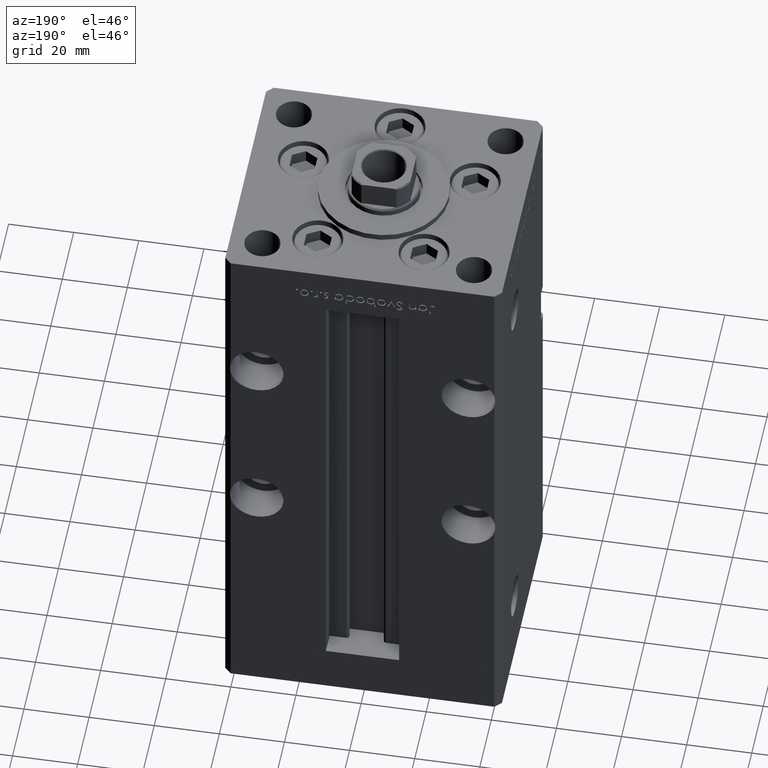
[diagram: clean part render]
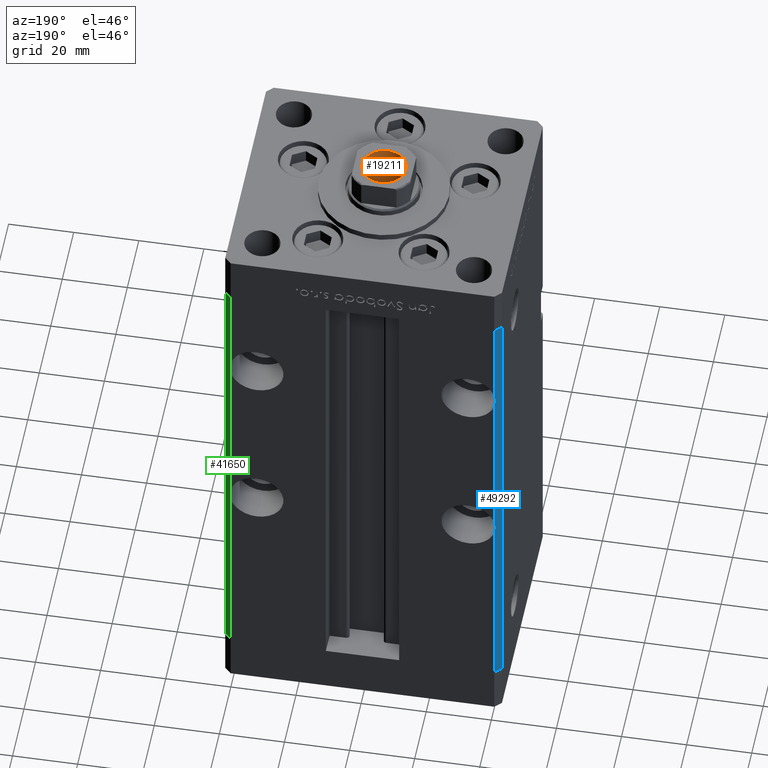
[diagram: same view with three faces highlighted in distinct colors, each labeled with its STEP entity id]
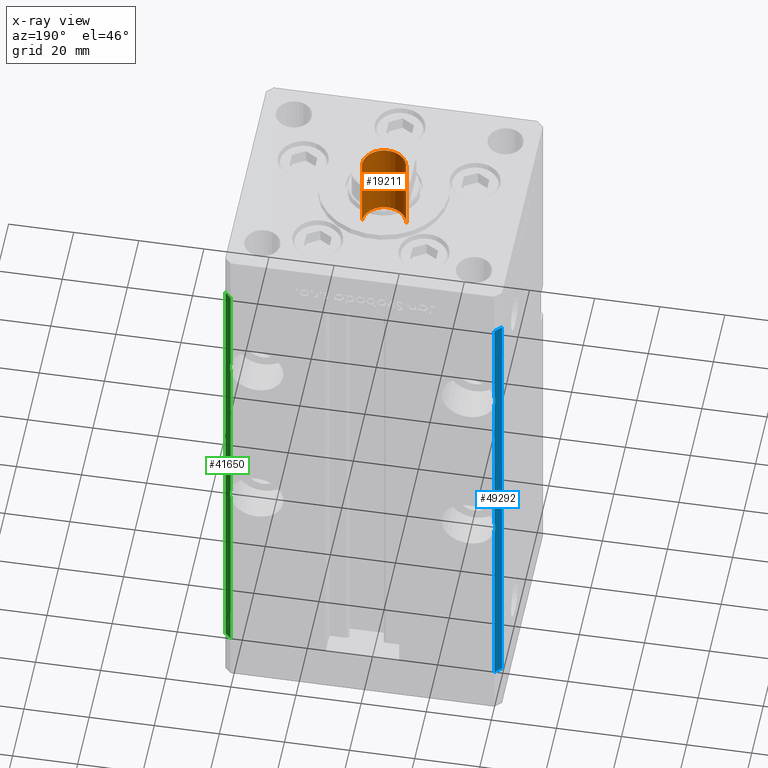
[diagram: x-ray of the same camera — body ghosted, the three highlighted faces saturated]
A machine part, auxiliary view with three faces highlighted in distinct colors.
The next image is the same camera in x-ray (body ghosted, the three faces saturated) — at least one of them is partly hidden behind the body in this view.
Their STEP definitions:

[orange] entity #19211 — the highlighted cylindrical surface (edge-blend (fillet) strip) has radius 6.75 mm, axis along (0, 0, 1).
#5401 = DIRECTION ( 'NONE',  ( -0.000000000000000000, -0.000000000000000000, 1.000000000000000000 ) ) ;
#7543 = EDGE_CURVE ( 'NONE', #15644, #9342, #8382, .T. ) ;
#7642 = DIRECTION ( 'NONE',  ( -0.000000000000000000, -0.000000000000000000, 1.000000000000000000 ) ) ;
#8382 = CIRCLE ( 'NONE', #48716, 6.749999999999993783 ) ;
#9174 = CARTESIAN_POINT ( 'NONE',  ( 6.749999999999995559, 0.000000000000000000, 155.7500000000000000 ) ) ;
#9342 = VERTEX_POINT ( 'NONE', #51227 ) ;
#10699 = EDGE_CURVE ( 'NONE', #15644, #46505, #35316, .T. ) ;
#10892 = CARTESIAN_POINT ( 'NONE',  ( -6.749999999999993783, 8.266365894244626445E-16, 130.7500000000000000 ) ) ;
#10893 = ORIENTED_EDGE ( 'NONE', *, *, #23974, .T. ) ;
#12662 = VERTEX_POINT ( 'NONE', #16691 ) ;
#12695 = LINE ( 'NONE', #9174, #34464 ) ;
#13616 = VECTOR ( 'NONE', #42592, 1000.000000000000000 ) ;
#14595 = CARTESIAN_POINT ( 'NONE',  ( 0.000000000000000000, 0.000000000000000000, 130.7500000000000000 ) ) ;
#14755 = CIRCLE ( 'NONE', #44793, 6.749999999999995559 ) ;
#15206 = CARTESIAN_POINT ( 'NONE',  ( 0.000000000000000000, 0.000000000000000000, 155.7500000000000000 ) ) ;
#15644 = VERTEX_POINT ( 'NONE', #10892 ) ;
#16691 = CARTESIAN_POINT ( 'NONE',  ( 6.749999999999995559, 0.000000000000000000, 155.4499999999999886 ) ) ;
#19211 = ADVANCED_FACE ( 'NONE', ( #35639 ), #52008, .F. ) ;
#19503 = DIRECTION ( 'NONE',  ( 1.000000000000000000, 0.000000000000000000, 0.000000000000000000 ) ) ;
#22208 = EDGE_LOOP ( 'NONE', ( #43532, #43874, #10893, #49036 ) ) ;
#23974 = EDGE_CURVE ( 'NONE', #46505, #12662, #14755, .T. ) ;
#24517 = CARTESIAN_POINT ( 'NONE',  ( 0.000000000000000000, 0.000000000000000000, 155.4499999999999886 ) ) ;
#33930 = CARTESIAN_POINT ( 'NONE',  ( -6.749999999999995559, 8.266365894244628417E-16, 155.4499999999999886 ) ) ;
#34464 = VECTOR ( 'NONE', #5401, 1000.000000000000000 ) ;
#35316 = LINE ( 'NONE', #43652, #13616 ) ;
#35639 = FACE_OUTER_BOUND ( 'NONE', #22208, .T. ) ;
#36890 = AXIS2_PLACEMENT_3D ( 'NONE', #15206, #7642, #19503 ) ;
#37391 = DIRECTION ( 'NONE',  ( 0.000000000000000000, 0.000000000000000000, 1.000000000000000000 ) ) ;
#37984 = DIRECTION ( 'NONE',  ( -0.000000000000000000, -0.000000000000000000, 1.000000000000000000 ) ) ;
#38785 = DIRECTION ( 'NONE',  ( 1.000000000000000000, 0.000000000000000000, 0.000000000000000000 ) ) ;
#39221 = EDGE_CURVE ( 'NONE', #9342, #12662, #12695, .T. ) ;
#42592 = DIRECTION ( 'NONE',  ( -0.000000000000000000, -0.000000000000000000, 1.000000000000000000 ) ) ;
#43532 = ORIENTED_EDGE ( 'NONE', *, *, #7543, .F. ) ;
#43652 = CARTESIAN_POINT ( 'NONE',  ( -6.749999999999995559, 8.266365894244628417E-16, 155.7500000000000000 ) ) ;
#43874 = ORIENTED_EDGE ( 'NONE', *, *, #10699, .T. ) ;
#44793 = AXIS2_PLACEMENT_3D ( 'NONE', #24517, #37391, #45449 ) ;
#45449 = DIRECTION ( 'NONE',  ( 1.000000000000000000, 0.000000000000000000, 0.000000000000000000 ) ) ;
#46505 = VERTEX_POINT ( 'NONE', #33930 ) ;
#48716 = AXIS2_PLACEMENT_3D ( 'NONE', #14595, #37984, #38785 ) ;
#49036 = ORIENTED_EDGE ( 'NONE', *, *, #39221, .F. ) ;
#51227 = CARTESIAN_POINT ( 'NONE',  ( 6.749999999999993783, 0.000000000000000000, 130.7500000000000000 ) ) ;
#52008 = CYLINDRICAL_SURFACE ( 'NONE', #36890, 6.749999999999995559 ) ;

[blue] entity #49292 — the highlighted planar face has unit normal (0.7071, -0.7071, 0).
#1158 = DIRECTION ( 'NONE',  ( -0.000000000000000000, -0.000000000000000000, -1.000000000000000000 ) ) ;
#1349 = VERTEX_POINT ( 'NONE', #33908 ) ;
#3082 = CARTESIAN_POINT ( 'NONE',  ( -40.50000000000000711, 37.50000000000000000, 148.5000000000000000 ) ) ;
#4180 =( BOUNDED_CURVE ( )  B_SPLINE_CURVE ( 3, ( #46252, #50284, #50011, #21803 ),
 .UNSPECIFIED., .F., .F. ) 
 B_SPLINE_CURVE_WITH_KNOTS ( ( 4, 4 ),
 ( 2.894783720120223780, 3.388401587059362452 ),
 .UNSPECIFIED. ) 
 CURVE ( )  GEOMETRIC_REPRESENTATION_ITEM ( )  RATIONAL_B_SPLINE_CURVE ( ( 1.000000000000000000, 0.9797979797979803340, 0.9797979797979803340, 1.000000000000000000 ) ) 
 REPRESENTATION_ITEM ( '' )  );
#5086 = VERTEX_POINT ( 'NONE', #3082 ) ;
#5442 = CARTESIAN_POINT ( 'NONE',  ( -40.83505154639175316, 37.16494845360826815, 63.68570748890167721 ) ) ;
#5447 = CARTESIAN_POINT ( 'NONE',  ( -42.50000000000001421, 35.50000000000000711, 148.5000000000000000 ) ) ;
#6247 = CARTESIAN_POINT ( 'NONE',  ( -40.50000000000000711, 37.50000000000000000, 65.01556443707461597 ) ) ;
#6295 = LINE ( 'NONE', #18938, #17135 ) ;
#7707 = CARTESIAN_POINT ( 'NONE',  ( -40.50000000000000711, 37.50000000000000000, 0.000000000000000000 ) ) ;
#7983 = EDGE_CURVE ( 'NONE', #44360, #23321, #34599, .T. ) ;
#8743 = DIRECTION ( 'NONE',  ( 0.7071067811865500152, 0.7071067811865451302, 0.000000000000000000 ) ) ;
#8955 = LINE ( 'NONE', #5447, #52557 ) ;
#8967 = ORIENTED_EDGE ( 'NONE', *, *, #13348, .F. ) ;
#9012 = FACE_OUTER_BOUND ( 'NONE', #48759, .T. ) ;
#10334 = DIRECTION ( 'NONE',  ( -0.7071067811865500152, -0.7071067811865451302, 0.000000000000000000 ) ) ;
#13348 = EDGE_CURVE ( 'NONE', #5086, #17580, #6295, .T. ) ;
#14323 = CARTESIAN_POINT ( 'NONE',  ( -40.50000000000000711, 37.50000000000000000, 65.01556443707461597 ) ) ;
#14519 = VERTEX_POINT ( 'NONE', #14323 ) ;
#15164 = EDGE_CURVE ( 'NONE', #5086, #1349, #45915, .T. ) ;
#17092 = PLANE ( 'NONE',  #35499 ) ;
#17135 = VECTOR ( 'NONE', #10334, 1000.000000000000114 ) ;
#17580 = VERTEX_POINT ( 'NONE', #27267 ) ;
#17942 = EDGE_CURVE ( 'NONE', #35175, #14519, #22645, .T. ) ;
#18605 = DIRECTION ( 'NONE',  ( -0.000000000000000000, -0.000000000000000000, -1.000000000000000000 ) ) ;
#18859 = CARTESIAN_POINT ( 'NONE',  ( -40.50000000000000711, 37.50000000000000000, 148.5000000000000000 ) ) ;
#18938 = CARTESIAN_POINT ( 'NONE',  ( -40.50000000000000711, 37.50000000000000000, 148.5000000000000000 ) ) ;
#19218 = CARTESIAN_POINT ( 'NONE',  ( -40.50000000000000711, 37.50000000000000000, 60.98443556292539114 ) ) ;
#19296 = ORIENTED_EDGE ( 'NONE', *, *, #26534, .T. ) ;
#21136 = DIRECTION ( 'NONE',  ( 0.7071067811865451302, -0.7071067811865500152, 0.000000000000000000 ) ) ;
#21577 = ORIENTED_EDGE ( 'NONE', *, *, #52121, .T. ) ;
#21803 = CARTESIAN_POINT ( 'NONE',  ( -40.50000000000000711, 37.50000000000000000, 115.9844355629253840 ) ) ;
#22645 = LINE ( 'NONE', #18859, #40307 ) ;
#23321 = VERTEX_POINT ( 'NONE', #50269 ) ;
#23621 = ORIENTED_EDGE ( 'NONE', *, *, #30116, .T. ) ;
#23656 = VERTEX_POINT ( 'NONE', #19218 ) ;
#24173 = CARTESIAN_POINT ( 'NONE',  ( -40.50000000000000711, 37.50000000000000000, 148.5000000000000000 ) ) ;
#25399 = LINE ( 'NONE', #33719, #48394 ) ;
#26288 = EDGE_CURVE ( 'NONE', #17580, #23321, #8955, .T. ) ;
#26534 = EDGE_CURVE ( 'NONE', #1349, #35175, #4180, .T. ) ;
#27267 = CARTESIAN_POINT ( 'NONE',  ( -42.50000000000001421, 35.50000000000000711, 148.5000000000000000 ) ) ;
#28666 = ORIENTED_EDGE ( 'NONE', *, *, #15164, .T. ) ;
#29431 = DIRECTION ( 'NONE',  ( -0.000000000000000000, -0.000000000000000000, -1.000000000000000000 ) ) ;
#30116 = EDGE_CURVE ( 'NONE', #23656, #44360, #25399, .T. ) ;
#30471 = CARTESIAN_POINT ( 'NONE',  ( -40.83505154639175316, 37.16494845360826105, 62.31429251109833700 ) ) ;
#30933 = ORIENTED_EDGE ( 'NONE', *, *, #17942, .T. ) ;
#31839 = CARTESIAN_POINT ( 'NONE',  ( -40.50000000000000711, 37.50000000000000000, 115.9844355629253840 ) ) ;
#33487 = CARTESIAN_POINT ( 'NONE',  ( -40.50000000000000711, 37.50000000000000000, 148.5000000000000000 ) ) ;
#33719 = CARTESIAN_POINT ( 'NONE',  ( -40.50000000000000711, 37.50000000000000000, 148.5000000000000000 ) ) ;
#33908 = CARTESIAN_POINT ( 'NONE',  ( -40.50000000000000711, 37.50000000000000000, 120.0155644370746018 ) ) ;
#34599 = LINE ( 'NONE', #50715, #39283 ) ;
#35175 = VERTEX_POINT ( 'NONE', #31839 ) ;
#35499 = AXIS2_PLACEMENT_3D ( 'NONE', #33487, #21136, #8743 ) ;
#39283 = VECTOR ( 'NONE', #50981, 1000.000000000000114 ) ;
#40307 = VECTOR ( 'NONE', #18605, 1000.000000000000000 ) ;
#40685 = ORIENTED_EDGE ( 'NONE', *, *, #7983, .T. ) ;
#44360 = VERTEX_POINT ( 'NONE', #7707 ) ;
#45381 = DIRECTION ( 'NONE',  ( -0.000000000000000000, -0.000000000000000000, -1.000000000000000000 ) ) ;
#45915 = LINE ( 'NONE', #24173, #50629 ) ;
#46045 = CARTESIAN_POINT ( 'NONE',  ( -40.50000000000000711, 37.50000000000000000, 60.98443556292539114 ) ) ;
#46252 = CARTESIAN_POINT ( 'NONE',  ( -40.50000000000000711, 37.50000000000000000, 120.0155644370746018 ) ) ;
#47767 = ORIENTED_EDGE ( 'NONE', *, *, #26288, .F. ) ;
#48394 = VECTOR ( 'NONE', #29431, 1000.000000000000000 ) ;
#48759 = EDGE_LOOP ( 'NONE', ( #28666, #19296, #30933, #21577, #23621, #40685, #47767, #8967 ) ) ;
#49292 = ADVANCED_FACE ( 'NONE', ( #9012 ), #17092, .F. ) ;
#50011 = CARTESIAN_POINT ( 'NONE',  ( -40.83505154639175316, 37.16494845360826105, 117.3142925110983157 ) ) ;
#50269 = CARTESIAN_POINT ( 'NONE',  ( -42.50000000000001421, 35.50000000000000711, 0.000000000000000000 ) ) ;
#50284 = CARTESIAN_POINT ( 'NONE',  ( -40.83505154639175316, 37.16494845360826105, 118.6857074889016701 ) ) ;
#50629 = VECTOR ( 'NONE', #45381, 1000.000000000000000 ) ;
#50715 = CARTESIAN_POINT ( 'NONE',  ( -40.50000000000000711, 37.50000000000000000, 0.000000000000000000 ) ) ;
#50981 = DIRECTION ( 'NONE',  ( -0.7071067811865500152, -0.7071067811865451302, 0.000000000000000000 ) ) ;
#51594 =( BOUNDED_CURVE ( )  B_SPLINE_CURVE ( 3, ( #6247, #5442, #30471, #46045 ),
 .UNSPECIFIED., .F., .F. ) 
 B_SPLINE_CURVE_WITH_KNOTS ( ( 4, 4 ),
 ( 2.894783720120223780, 3.388401587059362452 ),
 .UNSPECIFIED. ) 
 CURVE ( )  GEOMETRIC_REPRESENTATION_ITEM ( )  RATIONAL_B_SPLINE_CURVE ( ( 1.000000000000000000, 0.9797979797979803340, 0.9797979797979803340, 1.000000000000000000 ) ) 
 REPRESENTATION_ITEM ( '' )  );
#52121 = EDGE_CURVE ( 'NONE', #14519, #23656, #51594, .T. ) ;
#52557 = VECTOR ( 'NONE', #1158, 1000.000000000000000 ) ;

[green] entity #41650 — the highlighted planar face has unit normal (0.7071, 0.7071, 0).
#122 = CARTESIAN_POINT ( 'NONE',  ( 40.50000000000000711, 37.50000000000000000, 60.98443556292540535 ) ) ;
#433 = ORIENTED_EDGE ( 'NONE', *, *, #47523, .T. ) ;
#969 = CARTESIAN_POINT ( 'NONE',  ( 40.50000000000000711, 37.50000000000000000, 115.9844355629253272 ) ) ;
#1057 = EDGE_CURVE ( 'NONE', #26892, #47627, #32920, .T. ) ;
#2097 = VERTEX_POINT ( 'NONE', #6538 ) ;
#2790 = VECTOR ( 'NONE', #12750, 1000.000000000000000 ) ;
#5905 =( BOUNDED_CURVE ( )  B_SPLINE_CURVE ( 3, ( #30283, #34050, #50427, #969 ),
 .UNSPECIFIED., .F., .F. ) 
 B_SPLINE_CURVE_WITH_KNOTS ( ( 4, 4 ),
 ( 2.894783720120217119, 3.388401587059369113 ),
 .UNSPECIFIED. ) 
 CURVE ( )  GEOMETRIC_REPRESENTATION_ITEM ( )  RATIONAL_B_SPLINE_CURVE ( ( 1.000000000000000000, 0.9797979797979792238, 0.9797979797979792238, 1.000000000000000000 ) ) 
 REPRESENTATION_ITEM ( '' )  );
#6452 = CARTESIAN_POINT ( 'NONE',  ( 40.50000000000000711, 37.50000000000000000, 148.5000000000000000 ) ) ;
#6538 = CARTESIAN_POINT ( 'NONE',  ( 42.50000000000001421, 35.50000000000000711, 0.000000000000000000 ) ) ;
#8595 = VECTOR ( 'NONE', #9682, 1000.000000000000000 ) ;
#9363 =( BOUNDED_CURVE ( )  B_SPLINE_CURVE ( 3, ( #23814, #20318, #52536, #122 ),
 .UNSPECIFIED., .F., .F. ) 
 B_SPLINE_CURVE_WITH_KNOTS ( ( 4, 4 ),
 ( 2.894783720120225556, 3.388401587059360676 ),
 .UNSPECIFIED. ) 
 CURVE ( )  GEOMETRIC_REPRESENTATION_ITEM ( )  RATIONAL_B_SPLINE_CURVE ( ( 1.000000000000000000, 0.9797979797979806671, 0.9797979797979806671, 1.000000000000000000 ) ) 
 REPRESENTATION_ITEM ( '' )  );
#9682 = DIRECTION ( 'NONE',  ( -0.000000000000000000, -0.000000000000000000, -1.000000000000000000 ) ) ;
#12510 = DIRECTION ( 'NONE',  ( -0.7071067811865500152, 0.7071067811865451302, 0.000000000000000000 ) ) ;
#12750 = DIRECTION ( 'NONE',  ( -0.000000000000000000, -0.000000000000000000, -1.000000000000000000 ) ) ;
#13174 = CARTESIAN_POINT ( 'NONE',  ( 42.50000000000001421, 35.50000000000000711, 148.5000000000000000 ) ) ;
#13700 = CARTESIAN_POINT ( 'NONE',  ( 40.50000000000000711, 37.50000000000000000, 120.0155644370746586 ) ) ;
#14604 = VERTEX_POINT ( 'NONE', #22931 ) ;
#15845 = EDGE_CURVE ( 'NONE', #14604, #47067, #43288, .T. ) ;
#16014 = CARTESIAN_POINT ( 'NONE',  ( 40.50000000000000711, 37.50000000000000000, 0.000000000000000000 ) ) ;
#16649 = EDGE_CURVE ( 'NONE', #47067, #51456, #9363, .T. ) ;
#16934 = CARTESIAN_POINT ( 'NONE',  ( 42.50000000000001421, 35.50000000000000711, 148.5000000000000000 ) ) ;
#17368 = VERTEX_POINT ( 'NONE', #16014 ) ;
#18008 = ORIENTED_EDGE ( 'NONE', *, *, #33883, .F. ) ;
#18366 = VECTOR ( 'NONE', #24800, 1000.000000000000114 ) ;
#19119 = EDGE_CURVE ( 'NONE', #47627, #14604, #5905, .T. ) ;
#19639 = EDGE_LOOP ( 'NONE', ( #29745, #21253, #22954, #37260, #22127, #433, #18008, #38816 ) ) ;
#20318 = CARTESIAN_POINT ( 'NONE',  ( 40.83505154639174606, 37.16494845360826105, 63.68570748890166300 ) ) ;
#20769 = LINE ( 'NONE', #48251, #48390 ) ;
#21253 = ORIENTED_EDGE ( 'NONE', *, *, #15845, .F. ) ;
#22127 = ORIENTED_EDGE ( 'NONE', *, *, #37129, .T. ) ;
#22931 = CARTESIAN_POINT ( 'NONE',  ( 40.50000000000000711, 37.50000000000000000, 115.9844355629253272 ) ) ;
#22954 = ORIENTED_EDGE ( 'NONE', *, *, #19119, .F. ) ;
#23042 = CARTESIAN_POINT ( 'NONE',  ( 40.50000000000000711, 37.50000000000000000, 148.5000000000000000 ) ) ;
#23814 = CARTESIAN_POINT ( 'NONE',  ( 40.50000000000000711, 37.50000000000000000, 65.01556443707460176 ) ) ;
#24800 = DIRECTION ( 'NONE',  ( 0.7071067811865500152, -0.7071067811865451302, 0.000000000000000000 ) ) ;
#25642 = DIRECTION ( 'NONE',  ( 0.7071067811865500152, -0.7071067811865451302, 0.000000000000000000 ) ) ;
#25912 = LINE ( 'NONE', #42300, #37303 ) ;
#26892 = VERTEX_POINT ( 'NONE', #23042 ) ;
#29745 = ORIENTED_EDGE ( 'NONE', *, *, #16649, .F. ) ;
#30283 = CARTESIAN_POINT ( 'NONE',  ( 40.50000000000000711, 37.50000000000000000, 120.0155644370746586 ) ) ;
#31870 = CARTESIAN_POINT ( 'NONE',  ( 40.50000000000000711, 37.50000000000000000, 0.000000000000000000 ) ) ;
#31875 = PLANE ( 'NONE',  #43146 ) ;
#32146 = CARTESIAN_POINT ( 'NONE',  ( 40.50000000000000711, 37.50000000000000000, 148.5000000000000000 ) ) ;
#32920 = LINE ( 'NONE', #49304, #2790 ) ;
#32939 = DIRECTION ( 'NONE',  ( 0.7071067811865451302, 0.7071067811865500152, -0.000000000000000000 ) ) ;
#33883 = EDGE_CURVE ( 'NONE', #17368, #2097, #49253, .T. ) ;
#33911 = EDGE_CURVE ( 'NONE', #51456, #17368, #20769, .T. ) ;
#34050 = CARTESIAN_POINT ( 'NONE',  ( 40.83505154639176737, 37.16494845360823973, 118.6857074889016843 ) ) ;
#37129 = EDGE_CURVE ( 'NONE', #26892, #40282, #25912, .T. ) ;
#37149 = DIRECTION ( 'NONE',  ( -0.000000000000000000, -0.000000000000000000, -1.000000000000000000 ) ) ;
#37260 = ORIENTED_EDGE ( 'NONE', *, *, #1057, .F. ) ;
#37303 = VECTOR ( 'NONE', #25642, 1000.000000000000114 ) ;
#37881 = LINE ( 'NONE', #13174, #40595 ) ;
#38153 = DIRECTION ( 'NONE',  ( -0.000000000000000000, -0.000000000000000000, -1.000000000000000000 ) ) ;
#38816 = ORIENTED_EDGE ( 'NONE', *, *, #33911, .F. ) ;
#40282 = VERTEX_POINT ( 'NONE', #16934 ) ;
#40595 = VECTOR ( 'NONE', #38153, 1000.000000000000000 ) ;
#41650 = ADVANCED_FACE ( 'NONE', ( #51755 ), #31875, .T. ) ;
#42300 = CARTESIAN_POINT ( 'NONE',  ( 40.50000000000000711, 37.50000000000000000, 148.5000000000000000 ) ) ;
#43146 = AXIS2_PLACEMENT_3D ( 'NONE', #32146, #32939, #12510 ) ;
#43288 = LINE ( 'NONE', #6452, #8595 ) ;
#47067 = VERTEX_POINT ( 'NONE', #50649 ) ;
#47238 = CARTESIAN_POINT ( 'NONE',  ( 40.50000000000000711, 37.50000000000000000, 60.98443556292540535 ) ) ;
#47523 = EDGE_CURVE ( 'NONE', #40282, #2097, #37881, .T. ) ;
#47627 = VERTEX_POINT ( 'NONE', #13700 ) ;
#48251 = CARTESIAN_POINT ( 'NONE',  ( 40.50000000000000711, 37.50000000000000000, 148.5000000000000000 ) ) ;
#48390 = VECTOR ( 'NONE', #37149, 1000.000000000000000 ) ;
#49253 = LINE ( 'NONE', #31870, #18366 ) ;
#49304 = CARTESIAN_POINT ( 'NONE',  ( 40.50000000000000711, 37.50000000000000000, 148.5000000000000000 ) ) ;
#50427 = CARTESIAN_POINT ( 'NONE',  ( 40.83505154639176737, 37.16494845360823973, 117.3142925110983015 ) ) ;
#50649 = CARTESIAN_POINT ( 'NONE',  ( 40.50000000000000711, 37.50000000000000000, 65.01556443707460176 ) ) ;
#51456 = VERTEX_POINT ( 'NONE', #47238 ) ;
#51755 = FACE_OUTER_BOUND ( 'NONE', #19639, .T. ) ;
#52536 = CARTESIAN_POINT ( 'NONE',  ( 40.83505154639174606, 37.16494845360825394, 62.31429251109832990 ) ) ;